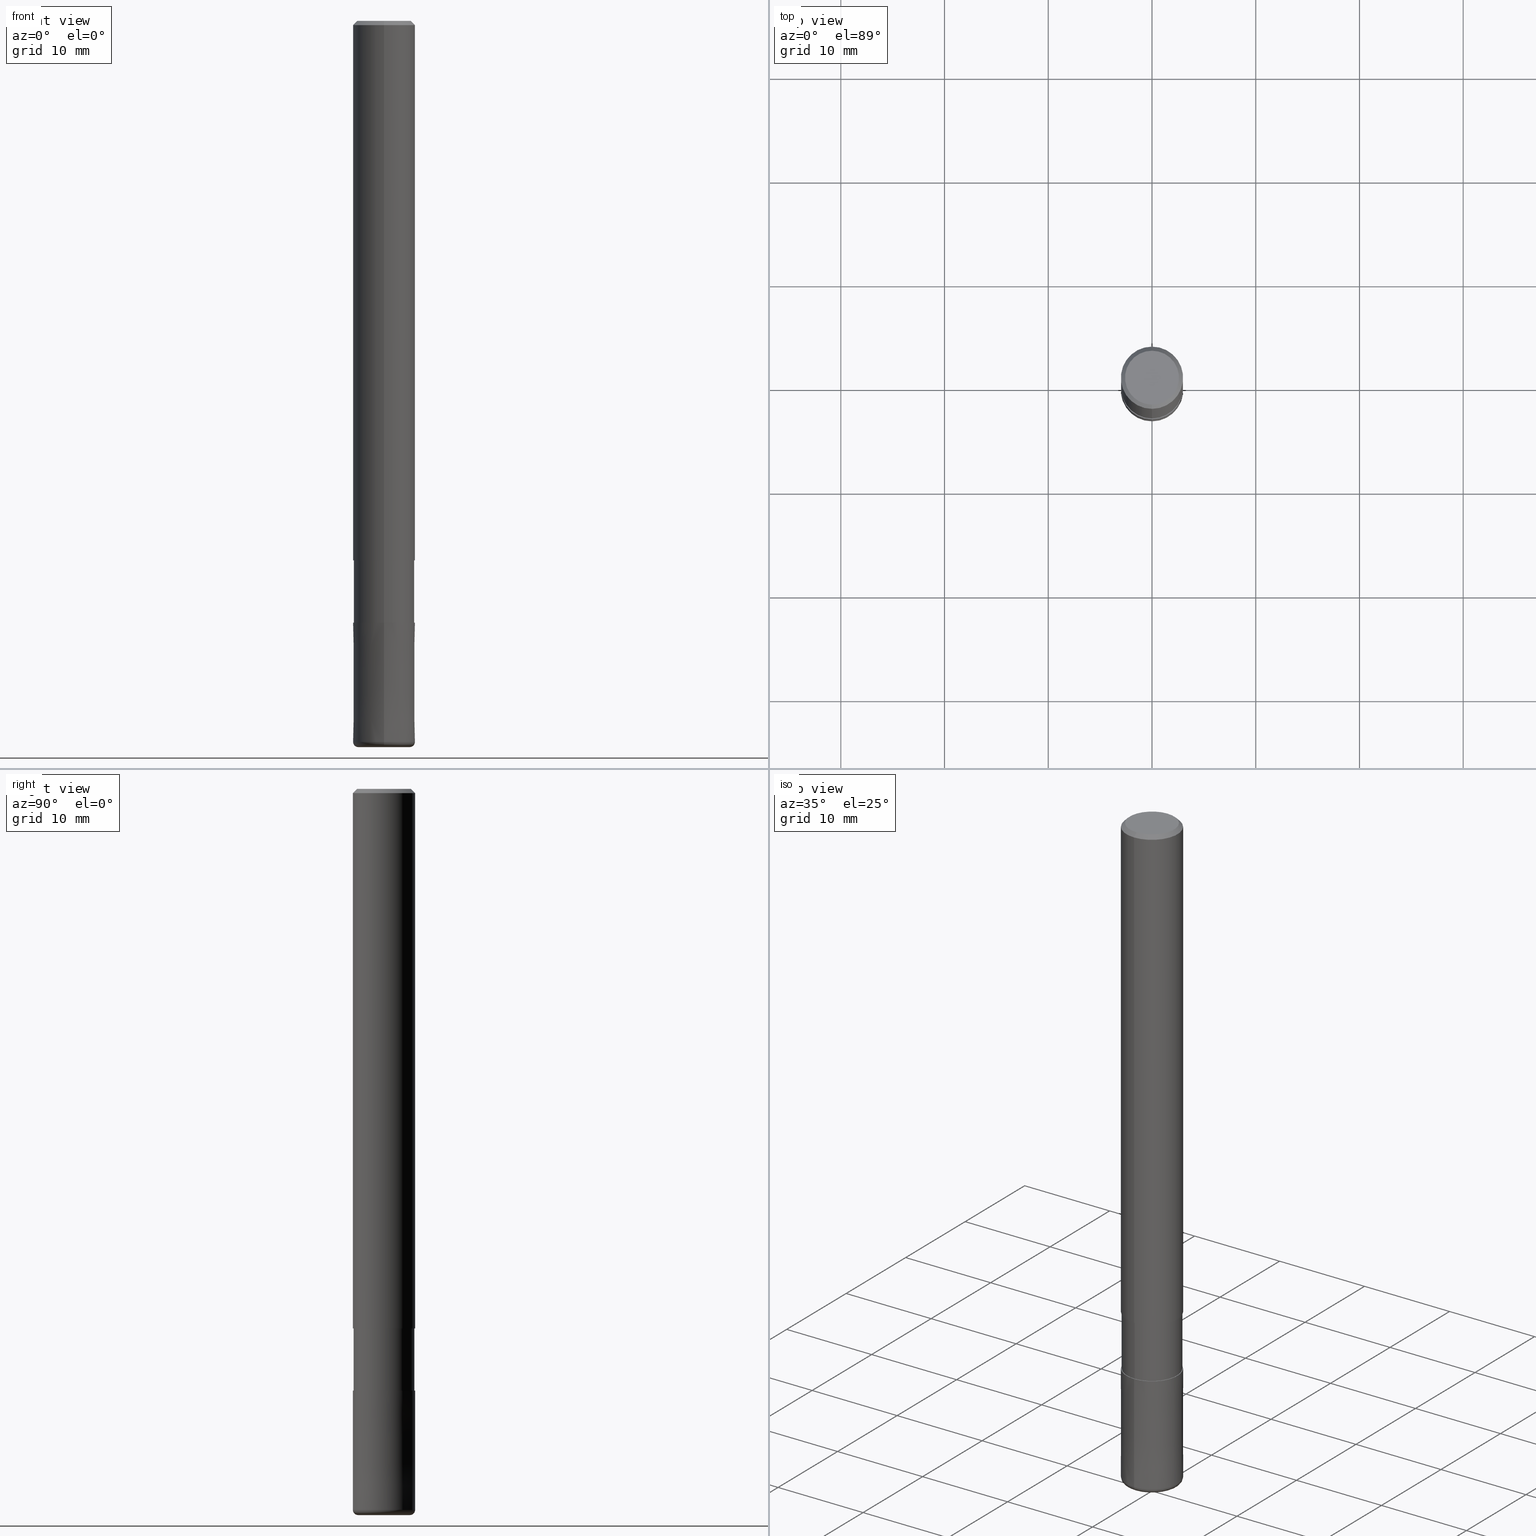
[diagram: canonical four-view strip — front | top / right | iso, engineering-drawing reading convention]
A machine part, canonical four-view strip (front | top / right | iso — engineering-drawing reading convention). The complete STEP part file that produces these views, byte-faithful:
ISO-10303-21;
HEADER;
FILE_DESCRIPTION(('no description'),'unknown implementation level');
FILE_NAME('CXLRS5060-05-18-Huellk.stp','  ',('CIMSOURCE GmbH'),('CADClick - KiM GmbH - www.kimweb.de'),'unknown preprocess','ACIS','unknown authorization');
FILE_SCHEMA(('automotive_design'));
ENDSEC;
DATA;
#1=MECHANICAL_DESIGN_GEOMETRIC_PRESENTATION_REPRESENTATION(' ',(#14,#15,#16,#17,#18,#19,#20,#21,#22,#23,#24,#25,#26,#27,#28,#29,#30,#31,#32,#33,#34,#35,#36,#37,#38,#39,#40,#41,#42,#43,#44,#45,#46,#47,#48,#49,#50,#51,#52,#53,#54,#55,#56,#57,#58,#59,#60,#61,#62,#63,#64,#65,#66,#67,#68,#69,#70,#71,#72,#73,#74,#75,#76,#77,#78,#79,#80,#81,#82,#83,#84,#85,#86,#87,#88,#89,#90,#91,#92,#93,#94,#95,#96,#97),#10);
#2=PRODUCT_DEFINITION_CONTEXT('',#98,'design');
#3=APPLICATION_PROTOCOL_DEFINITION('INTERNATIONAL STANDARD','automotive_design',1994,#98);
#4=PRODUCT_CATEGORY_RELATIONSHIP('NONE','NONE',#99,#100);
#5=SHAPE_DEFINITION_REPRESENTATION(#101,#102);
#6=PRODUCT_DEFINITION_CONTEXT('',#103,'design');
#7=APPLICATION_PROTOCOL_DEFINITION('INTERNATIONAL STANDARD','automotive_design',1994,#103);
#8=PRODUCT_CATEGORY_RELATIONSHIP('NONE','NONE',#104,#105);
#9=SHAPE_DEFINITION_REPRESENTATION(#106,#107);
#10= (GEOMETRIC_REPRESENTATION_CONTEXT(3)GLOBAL_UNCERTAINTY_ASSIGNED_CONTEXT((#110))GLOBAL_UNIT_ASSIGNED_CONTEXT((#112,#113,#114))REPRESENTATION_CONTEXT('NONE','WORKSPACE'));
#14=STYLED_ITEM('',(#116),#117);
#15=STYLED_ITEM('',(#118),#119);
#16=STYLED_ITEM('',(#120),#121);
#17=STYLED_ITEM('',(#122),#123);
#18=STYLED_ITEM('',(#124),#125);
#19=STYLED_ITEM('',(#126),#127);
#20=STYLED_ITEM('',(#128),#129);
#21=STYLED_ITEM('',(#130),#131);
#22=STYLED_ITEM('',(#132),#133);
#23=STYLED_ITEM('',(#134),#135);
#24=STYLED_ITEM('',(#136),#137);
#25=STYLED_ITEM('',(#138),#139);
#26=STYLED_ITEM('',(#140),#141);
#27=STYLED_ITEM('',(#142),#143);
#28=STYLED_ITEM('',(#144),#145);
#29=STYLED_ITEM('',(#146),#147);
#30=STYLED_ITEM('',(#148),#149);
#31=STYLED_ITEM('',(#150),#151);
#32=STYLED_ITEM('',(#152),#153);
#33=STYLED_ITEM('',(#154),#155);
#34=STYLED_ITEM('',(#156),#157);
#35=STYLED_ITEM('',(#158),#159);
#36=STYLED_ITEM('',(#160),#161);
#37=STYLED_ITEM('',(#162),#163);
#38=STYLED_ITEM('',(#164),#165);
#39=STYLED_ITEM('',(#166),#167);
#40=STYLED_ITEM('',(#168),#169);
#41=STYLED_ITEM('',(#170),#171);
#42=STYLED_ITEM('',(#172),#173);
#43=STYLED_ITEM('',(#174),#175);
#44=STYLED_ITEM('',(#176),#177);
#45=STYLED_ITEM('',(#178),#179);
#46=STYLED_ITEM('',(#180),#181);
#47=STYLED_ITEM('',(#182),#183);
#48=STYLED_ITEM('',(#184),#185);
#49=STYLED_ITEM('',(#186),#187);
#50=STYLED_ITEM('',(#188),#189);
#51=STYLED_ITEM('',(#190),#191);
#52=STYLED_ITEM('',(#192),#193);
#53=STYLED_ITEM('',(#194),#195);
#54=STYLED_ITEM('',(#196),#197);
#55=STYLED_ITEM('',(#198),#199);
#56=STYLED_ITEM('',(#200),#201);
#57=STYLED_ITEM('',(#202),#203);
#58=STYLED_ITEM('',(#204),#205);
#59=STYLED_ITEM('',(#206),#207);
#60=STYLED_ITEM('',(#208),#209);
#61=STYLED_ITEM('',(#210),#211);
#62=STYLED_ITEM('',(#212),#213);
#63=STYLED_ITEM('',(#214),#215);
#64=STYLED_ITEM('',(#216),#217);
#65=STYLED_ITEM('',(#218),#219);
#66=STYLED_ITEM('',(#220),#221);
#67=STYLED_ITEM('',(#222),#223);
#68=STYLED_ITEM('',(#224),#225);
#69=STYLED_ITEM('',(#226),#227);
#70=STYLED_ITEM('',(#228),#229);
#71=STYLED_ITEM('',(#230),#231);
#72=STYLED_ITEM('',(#232),#233);
#73=STYLED_ITEM('',(#234),#235);
#74=STYLED_ITEM('',(#236),#237);
#75=STYLED_ITEM('',(#238),#239);
#76=STYLED_ITEM('',(#240),#241);
#77=STYLED_ITEM('',(#242),#243);
#78=STYLED_ITEM('',(#244),#245);
#79=STYLED_ITEM('',(#246),#247);
#80=STYLED_ITEM('',(#248),#249);
#81=STYLED_ITEM('',(#250),#251);
#82=STYLED_ITEM('',(#252),#253);
#83=STYLED_ITEM('',(#254),#255);
#84=STYLED_ITEM('',(#256),#257);
#85=STYLED_ITEM('',(#258),#259);
#86=STYLED_ITEM('',(#260),#261);
#87=STYLED_ITEM('',(#262),#263);
#88=STYLED_ITEM('',(#264),#265);
#89=STYLED_ITEM('',(#266),#267);
#90=STYLED_ITEM('',(#268),#269);
#91=STYLED_ITEM('',(#270),#271);
#92=STYLED_ITEM('',(#272),#273);
#93=STYLED_ITEM('',(#274),#275);
#94=STYLED_ITEM('',(#276),#277);
#95=STYLED_ITEM('',(#278),#279);
#96=STYLED_ITEM('',(#280),#281);
#97=STYLED_ITEM('',(#282),#283);
#98=APPLICATION_CONTEXT(' ');
#99=PRODUCT_CATEGORY('part','NONE');
#100=PRODUCT_RELATED_PRODUCT_CATEGORY('detail',' ',(#284));
#101=PRODUCT_DEFINITION_SHAPE('NONE','NONE',#285);
#102=ADVANCED_BREP_SHAPE_REPRESENTATION('1',(#283,#286),#10);
#103=APPLICATION_CONTEXT(' ');
#104=PRODUCT_CATEGORY('part','NONE');
#105=PRODUCT_RELATED_PRODUCT_CATEGORY('detail',' ',(#287));
#106=PRODUCT_DEFINITION_SHAPE('NONE','NONE',#288);
#107=ADVANCED_BREP_SHAPE_REPRESENTATION('2',(#277,#289),#10);
#110=UNCERTAINTY_MEASURE_WITH_UNIT(LENGTH_MEASURE(1.0E-006),#112,'','');
#112= (CONVERSION_BASED_UNIT('MILLIMETRE',#292)LENGTH_UNIT()NAMED_UNIT(#295));
#113= (NAMED_UNIT(#297)PLANE_ANGLE_UNIT()SI_UNIT($,.RADIAN.));
#114= (NAMED_UNIT(#297)SOLID_ANGLE_UNIT()SI_UNIT($,.STERADIAN.));
#116=PRESENTATION_STYLE_ASSIGNMENT((#303));
#117=ADVANCED_FACE('',(#304,#305),#306,.T.);
#118=PRESENTATION_STYLE_ASSIGNMENT((#307));
#119=EDGE_CURVE('',#233,#143,#308,.T.);
#120=PRESENTATION_STYLE_ASSIGNMENT((#309));
#121=VERTEX_POINT('',#310);
#122=PRESENTATION_STYLE_ASSIGNMENT((#311));
#123=EDGE_CURVE('',#231,#143,#312,.T.);
#124=PRESENTATION_STYLE_ASSIGNMENT((#313));
#125=EDGE_CURVE('',#281,#207,#314,.T.);
#126=PRESENTATION_STYLE_ASSIGNMENT((#315));
#127=EDGE_CURVE('',#275,#185,#316,.T.);
#128=PRESENTATION_STYLE_ASSIGNMENT((#317));
#129=EDGE_CURVE('',#281,#155,#318,.T.);
#130=PRESENTATION_STYLE_ASSIGNMENT((#319));
#131=EDGE_CURVE('',#233,#191,#320,.T.);
#132=PRESENTATION_STYLE_ASSIGNMENT((#321));
#133=EDGE_CURVE('',#251,#227,#322,.T.);
#134=PRESENTATION_STYLE_ASSIGNMENT((#323));
#135=EDGE_CURVE('',#265,#149,#324,.T.);
#136=PRESENTATION_STYLE_ASSIGNMENT((#325));
#137=ADVANCED_FACE('',(#326,#327),#328,.T.);
#138=PRESENTATION_STYLE_ASSIGNMENT((#329));
#139=EDGE_CURVE('',#231,#191,#330,.T.);
#140=PRESENTATION_STYLE_ASSIGNMENT((#331));
#141=ADVANCED_FACE('',(#332),#333,.T.);
#142=PRESENTATION_STYLE_ASSIGNMENT((#334));
#143=VERTEX_POINT('',#335);
#144=PRESENTATION_STYLE_ASSIGNMENT((#336));
#145=EDGE_CURVE('',#143,#233,#337,.T.);
#146=PRESENTATION_STYLE_ASSIGNMENT((#338));
#147=ADVANCED_FACE('',(#339,#340),#341,.T.);
#148=PRESENTATION_STYLE_ASSIGNMENT((#342));
#149=VERTEX_POINT('',#343);
#150=PRESENTATION_STYLE_ASSIGNMENT((#344));
#151=EDGE_CURVE('',#251,#213,#345,.T.);
#152=PRESENTATION_STYLE_ASSIGNMENT((#346));
#153=VERTEX_POINT('',#347);
#154=PRESENTATION_STYLE_ASSIGNMENT((#348));
#155=VERTEX_POINT('',#349);
#156=PRESENTATION_STYLE_ASSIGNMENT((#350));
#157=EDGE_CURVE('',#227,#251,#351,.T.);
#158=PRESENTATION_STYLE_ASSIGNMENT((#352));
#159=ADVANCED_FACE('',(#353),#354,.T.);
#160=PRESENTATION_STYLE_ASSIGNMENT((#355));
#161=ADVANCED_FACE('',(#356),#357,.T.);
#162=PRESENTATION_STYLE_ASSIGNMENT((#358));
#163=ADVANCED_FACE('',(#359),#360,.T.);
#164=PRESENTATION_STYLE_ASSIGNMENT((#361));
#165=ADVANCED_FACE('',(#362),#363,.T.);
#166=PRESENTATION_STYLE_ASSIGNMENT((#364));
#167=EDGE_CURVE('',#281,#185,#365,.T.);
#168=PRESENTATION_STYLE_ASSIGNMENT((#366));
#169=EDGE_CURVE('',#207,#203,#367,.T.);
#170=PRESENTATION_STYLE_ASSIGNMENT((#368));
#171=EDGE_CURVE('',#153,#279,#369,.T.);
#172=PRESENTATION_STYLE_ASSIGNMENT((#370));
#173=EDGE_CURVE('',#191,#231,#371,.T.);
#174=PRESENTATION_STYLE_ASSIGNMENT((#372));
#175=VERTEX_POINT('',#373);
#176=PRESENTATION_STYLE_ASSIGNMENT((#374));
#177=ADVANCED_FACE('',(#375),#376,.T.);
#178=PRESENTATION_STYLE_ASSIGNMENT((#377));
#179=ADVANCED_FACE('',(#378,#379),#380,.T.);
#180=PRESENTATION_STYLE_ASSIGNMENT((#381));
#181=EDGE_CURVE('',#193,#237,#382,.T.);
#182=PRESENTATION_STYLE_ASSIGNMENT((#383));
#183=EDGE_CURVE('',#149,#153,#384,.T.);
#184=PRESENTATION_STYLE_ASSIGNMENT((#385));
#185=VERTEX_POINT('',#386);
#186=PRESENTATION_STYLE_ASSIGNMENT((#387));
#187=EDGE_CURVE('',#279,#265,#388,.T.);
#188=PRESENTATION_STYLE_ASSIGNMENT((#389));
#189=EDGE_CURVE('',#175,#267,#390,.T.);
#190=PRESENTATION_STYLE_ASSIGNMENT((#391));
#191=VERTEX_POINT('',#392);
#192=PRESENTATION_STYLE_ASSIGNMENT((#393));
#193=VERTEX_POINT('',#394);
#194=PRESENTATION_STYLE_ASSIGNMENT((#395));
#195=EDGE_CURVE('',#121,#227,#396,.T.);
#196=PRESENTATION_STYLE_ASSIGNMENT((#397));
#197=ADVANCED_FACE('',(#398),#399,.T.);
#198=PRESENTATION_STYLE_ASSIGNMENT((#400));
#199=EDGE_CURVE('',#221,#261,#401,.T.);
#200=PRESENTATION_STYLE_ASSIGNMENT((#402));
#201=EDGE_CURVE('',#267,#221,#403,.T.);
#202=PRESENTATION_STYLE_ASSIGNMENT((#404));
#203=VERTEX_POINT('',#405);
#204=PRESENTATION_STYLE_ASSIGNMENT((#406));
#205=EDGE_CURVE('',#121,#213,#407,.T.);
#206=PRESENTATION_STYLE_ASSIGNMENT((#408));
#207=VERTEX_POINT('',#409);
#208=PRESENTATION_STYLE_ASSIGNMENT((#410));
#209=EDGE_CURVE('',#275,#155,#411,.T.);
#210=PRESENTATION_STYLE_ASSIGNMENT((#412));
#211=EDGE_CURVE('',#175,#261,#413,.T.);
#212=PRESENTATION_STYLE_ASSIGNMENT((#414));
#213=VERTEX_POINT('',#415);
#214=PRESENTATION_STYLE_ASSIGNMENT((#416));
#215=ADVANCED_FACE('',(#417),#418,.T.);
#216=PRESENTATION_STYLE_ASSIGNMENT((#419));
#217=EDGE_CURVE('',#185,#281,#420,.T.);
#218=PRESENTATION_STYLE_ASSIGNMENT((#421));
#219=ADVANCED_FACE('',(#422),#423,.T.);
#220=PRESENTATION_STYLE_ASSIGNMENT((#424));
#221=VERTEX_POINT('',#425);
#222=PRESENTATION_STYLE_ASSIGNMENT((#426));
#223=EDGE_CURVE('',#193,#231,#427,.T.);
#224=PRESENTATION_STYLE_ASSIGNMENT((#428));
#225=EDGE_CURVE('',#237,#193,#429,.T.);
#226=PRESENTATION_STYLE_ASSIGNMENT((#430));
#227=VERTEX_POINT('',#431);
#228=PRESENTATION_STYLE_ASSIGNMENT((#432));
#229=ADVANCED_FACE('',(#433),#434,.T.);
#230=PRESENTATION_STYLE_ASSIGNMENT((#435));
#231=VERTEX_POINT('',#436);
#232=PRESENTATION_STYLE_ASSIGNMENT((#437));
#233=VERTEX_POINT('',#438);
#234=PRESENTATION_STYLE_ASSIGNMENT((#439));
#235=ADVANCED_FACE('',(#440),#441,.T.);
#236=PRESENTATION_STYLE_ASSIGNMENT((#442));
#237=VERTEX_POINT('',#443);
#238=PRESENTATION_STYLE_ASSIGNMENT((#444));
#239=ADVANCED_FACE('',(#445),#446,.F.);
#240=PRESENTATION_STYLE_ASSIGNMENT((#447));
#241=EDGE_CURVE('',#155,#275,#448,.T.);
#242=PRESENTATION_STYLE_ASSIGNMENT((#449));
#243=ADVANCED_FACE('',(#450),#451,.T.);
#244=PRESENTATION_STYLE_ASSIGNMENT((#452));
#245=EDGE_CURVE('',#261,#175,#453,.T.);
#246=PRESENTATION_STYLE_ASSIGNMENT((#454));
#247=EDGE_CURVE('',#203,#185,#455,.T.);
#248=PRESENTATION_STYLE_ASSIGNMENT((#456));
#249=EDGE_CURVE('',#213,#121,#457,.T.);
#250=PRESENTATION_STYLE_ASSIGNMENT((#458));
#251=VERTEX_POINT('',#459);
#252=PRESENTATION_STYLE_ASSIGNMENT((#460));
#253=EDGE_CURVE('',#221,#267,#461,.T.);
#254=PRESENTATION_STYLE_ASSIGNMENT((#462));
#255=EDGE_CURVE('',#191,#237,#463,.T.);
#256=PRESENTATION_STYLE_ASSIGNMENT((#464));
#257=ADVANCED_FACE('',(#465),#466,.T.);
#258=PRESENTATION_STYLE_ASSIGNMENT((#467));
#259=EDGE_CURVE('',#153,#149,#468,.T.);
#260=PRESENTATION_STYLE_ASSIGNMENT((#469));
#261=VERTEX_POINT('',#470);
#262=PRESENTATION_STYLE_ASSIGNMENT((#471));
#263=EDGE_CURVE('',#203,#207,#472,.T.);
#264=PRESENTATION_STYLE_ASSIGNMENT((#473));
#265=VERTEX_POINT('',#474);
#266=PRESENTATION_STYLE_ASSIGNMENT((#475));
#267=VERTEX_POINT('',#476);
#268=PRESENTATION_STYLE_ASSIGNMENT((#477));
#269=ADVANCED_FACE('',(#478),#479,.F.);
#270=PRESENTATION_STYLE_ASSIGNMENT((#480));
#271=EDGE_CURVE('',#265,#279,#481,.T.);
#272=PRESENTATION_STYLE_ASSIGNMENT((#482));
#273=ADVANCED_FACE('',(#483),#484,.T.);
#274=PRESENTATION_STYLE_ASSIGNMENT((#485));
#275=VERTEX_POINT('',#486);
#276=PRESENTATION_STYLE_ASSIGNMENT((#487));
#277=MANIFOLD_SOLID_BREP('2',#488);
#278=PRESENTATION_STYLE_ASSIGNMENT((#489));
#279=VERTEX_POINT('',#490);
#280=PRESENTATION_STYLE_ASSIGNMENT((#491));
#281=VERTEX_POINT('',#492);
#282=PRESENTATION_STYLE_ASSIGNMENT((#493));
#283=MANIFOLD_SOLID_BREP('1',#494);
#284=PRODUCT('1','1','PART-1-DESC',(#495));
#285=PRODUCT_DEFINITION('NONE','NONE',#496,#2);
#286=AXIS2_PLACEMENT_3D('',#497,#498,#499);
#287=PRODUCT('2','2','PART-2-DESC',(#500));
#288=PRODUCT_DEFINITION('NONE','NONE',#501,#6);
#289=AXIS2_PLACEMENT_3D('',#502,#503,#504);
#292=LENGTH_MEASURE_WITH_UNIT(LENGTH_MEASURE(1.0),#505);
#295=DIMENSIONAL_EXPONENTS(1.0,0.0,0.0,0.0,0.0,0.0,0.0);
#297=DIMENSIONAL_EXPONENTS(0.0,0.0,0.0,0.0,0.0,0.0,0.0);
#303=SURFACE_STYLE_USAGE(.BOTH.,#506);
#304=FACE_BOUND('',#507,.T.);
#305=FACE_OUTER_BOUND('',#508,.T.);
#306=PLANE('',#509);
#307=CURVE_STYLE('',#510,POSITIVE_LENGTH_MEASURE(1.0E-006),#511);
#308=CIRCLE('',#512,3.0);
#309=POINT_STYLE(' ',#513,POSITIVE_LENGTH_MEASURE(1.0E-006),#514);
#310=CARTESIAN_POINT('',(0.0,1.35,-58.0));
#311=CURVE_STYLE('',#515,POSITIVE_LENGTH_MEASURE(1.0E-006),#516);
#312=LINE('',#517,#518);
#313=CURVE_STYLE('',#519,POSITIVE_LENGTH_MEASURE(1.0E-006),#520);
#314=LINE('',#521,#522);
#315=CURVE_STYLE('',#523,POSITIVE_LENGTH_MEASURE(1.0E-006),#524);
#316=CIRCLE('',#525,0.499999999999995);
#317=CURVE_STYLE('',#526,POSITIVE_LENGTH_MEASURE(1.0E-006),#527);
#318=CIRCLE('',#528,0.499999999999995);
#319=CURVE_STYLE('',#529,POSITIVE_LENGTH_MEASURE(1.0E-006),#530);
#320=LINE('',#531,#532);
#321=CURVE_STYLE('',#533,POSITIVE_LENGTH_MEASURE(1.0E-006),#534);
#322=CIRCLE('',#535,1.35);
#323=CURVE_STYLE('',#536,POSITIVE_LENGTH_MEASURE(1.0E-006),#537);
#324=LINE('',#538,#539);
#325=SURFACE_STYLE_USAGE(.BOTH.,#540);
#326=FACE_OUTER_BOUND('',#541,.T.);
#327=FACE_BOUND('',#542,.T.);
#328=PLANE('',#543);
#329=CURVE_STYLE('',#544,POSITIVE_LENGTH_MEASURE(1.0E-006),#545);
#330=CIRCLE('',#546,3.0);
#331=SURFACE_STYLE_USAGE(.BOTH.,#547);
#332=FACE_OUTER_BOUND('',#548,.T.);
#333=PLANE('',#549);
#334=POINT_STYLE(' ',#550,POSITIVE_LENGTH_MEASURE(1.0E-006),#551);
#335=CARTESIAN_POINT('',(0.0,3.0,-52.0));
#336=CURVE_STYLE('',#552,POSITIVE_LENGTH_MEASURE(1.0E-006),#553);
#337=CIRCLE('',#554,3.0);
#338=SURFACE_STYLE_USAGE(.BOTH.,#555);
#339=FACE_BOUND('',#556,.T.);
#340=FACE_OUTER_BOUND('',#557,.T.);
#341=PLANE('',#558);
#342=POINT_STYLE(' ',#559,POSITIVE_LENGTH_MEASURE(1.0E-006),#560);
#343=CARTESIAN_POINT('',(0.0,1.35,-69.9));
#344=CURVE_STYLE('',#561,POSITIVE_LENGTH_MEASURE(1.0E-006),#562);
#345=LINE('',#563,#564);
#346=POINT_STYLE(' ',#565,POSITIVE_LENGTH_MEASURE(1.0E-006),#566);
#347=CARTESIAN_POINT('',(1.65321857766021E-016,-1.35,-69.9));
#348=POINT_STYLE(' ',#567,POSITIVE_LENGTH_MEASURE(1.0E-006),#568);
#349=CARTESIAN_POINT('',(3.06151588455594E-016,-2.5,-70.0));
#350=CURVE_STYLE('',#569,POSITIVE_LENGTH_MEASURE(1.0E-006),#570);
#351=CIRCLE('',#571,1.35);
#352=SURFACE_STYLE_USAGE(.BOTH.,#572);
#353=FACE_OUTER_BOUND('',#573,.T.);
#354=CYLINDRICAL_SURFACE('',#574,3.0);
#355=SURFACE_STYLE_USAGE(.BOTH.,#575);
#356=FACE_OUTER_BOUND('',#576,.T.);
#357=CONICAL_SURFACE('',#577,2.99995,8.69565217371222E-006);
#358=SURFACE_STYLE_USAGE(.BOTH.,#578);
#359=FACE_OUTER_BOUND('',#579,.T.);
#360=CYLINDRICAL_SURFACE('',#580,1.35);
#361=SURFACE_STYLE_USAGE(.BOTH.,#581);
#362=FACE_OUTER_BOUND('',#582,.T.);
#363=CONICAL_SURFACE('',#583,2.99995,8.69565217371222E-006);
#364=CURVE_STYLE('',#584,POSITIVE_LENGTH_MEASURE(1.0E-006),#585);
#365=CIRCLE('',#586,3.0);
#366=CURVE_STYLE('',#587,POSITIVE_LENGTH_MEASURE(1.0E-006),#588);
#367=CIRCLE('',#589,2.9999);
#368=CURVE_STYLE('',#590,POSITIVE_LENGTH_MEASURE(1.0E-006),#591);
#369=LINE('',#592,#593);
#370=CURVE_STYLE('',#594,POSITIVE_LENGTH_MEASURE(1.0E-006),#595);
#371=CIRCLE('',#596,3.0);
#372=POINT_STYLE(' ',#597,POSITIVE_LENGTH_MEASURE(1.0E-006),#598);
#373=CARTESIAN_POINT('',(3.58191235461276E-016,-2.92495,-58.0));
#374=SURFACE_STYLE_USAGE(.BOTH.,#599);
#375=FACE_OUTER_BOUND('',#600,.T.);
#376=CYLINDRICAL_SURFACE('',#601,2.92495);
#377=SURFACE_STYLE_USAGE(.BOTH.,#602);
#378=FACE_OUTER_BOUND('',#603,.T.);
#379=FACE_BOUND('',#604,.T.);
#380=PLANE('',#605);
#381=CURVE_STYLE('',#606,POSITIVE_LENGTH_MEASURE(1.0E-006),#607);
#382=CIRCLE('',#608,2.6);
#383=CURVE_STYLE('',#609,POSITIVE_LENGTH_MEASURE(1.0E-006),#610);
#384=CIRCLE('',#611,1.35);
#385=POINT_STYLE(' ',#612,POSITIVE_LENGTH_MEASURE(1.0E-006),#613);
#386=CARTESIAN_POINT('',(0.0,3.0,-69.5));
#387=CURVE_STYLE('',#614,POSITIVE_LENGTH_MEASURE(1.0E-006),#615);
#388=CIRCLE('',#616,1.35);
#389=CURVE_STYLE('',#617,POSITIVE_LENGTH_MEASURE(1.0E-006),#618);
#390=LINE('',#619,#620);
#391=POINT_STYLE(' ',#621,POSITIVE_LENGTH_MEASURE(1.0E-006),#622);
#392=CARTESIAN_POINT('',(3.67381906146713E-016,-3.0,-0.399999999999999));
#393=POINT_STYLE(' ',#623,POSITIVE_LENGTH_MEASURE(1.0E-006),#624);
#394=CARTESIAN_POINT('',(0.0,2.6,0.0));
#395=CURVE_STYLE('',#625,POSITIVE_LENGTH_MEASURE(1.0E-006),#626);
#396=LINE('',#627,#628);
#397=SURFACE_STYLE_USAGE(.BOTH.,#629);
#398=FACE_OUTER_BOUND('',#630,.T.);
#399=CONICAL_SURFACE('',#631,2.8,0.78539816339745);
#400=CURVE_STYLE('',#632,POSITIVE_LENGTH_MEASURE(1.0E-006),#633);
#401=LINE('',#634,#635);
#402=CURVE_STYLE('',#636,POSITIVE_LENGTH_MEASURE(1.0E-006),#637);
#403=CIRCLE('',#638,2.92495);
#404=POINT_STYLE(' ',#639,POSITIVE_LENGTH_MEASURE(1.0E-006),#640);
#405=CARTESIAN_POINT('',(0.0,2.9999,-58.0));
#406=CURVE_STYLE('',#641,POSITIVE_LENGTH_MEASURE(1.0E-006),#642);
#407=CIRCLE('',#643,1.35);
#408=POINT_STYLE(' ',#644,POSITIVE_LENGTH_MEASURE(1.0E-006),#645);
#409=CARTESIAN_POINT('',(3.67369660083175E-016,-2.9999,-58.0));
#410=CURVE_STYLE('',#646,POSITIVE_LENGTH_MEASURE(1.0E-006),#647);
#411=CIRCLE('',#648,2.5);
#412=CURVE_STYLE('',#649,POSITIVE_LENGTH_MEASURE(1.0E-006),#650);
#413=CIRCLE('',#651,2.92495);
#414=POINT_STYLE(' ',#652,POSITIVE_LENGTH_MEASURE(1.0E-006),#653);
#415=CARTESIAN_POINT('',(1.65321857766021E-016,-1.35,-58.0));
#416=SURFACE_STYLE_USAGE(.BOTH.,#654);
#417=FACE_OUTER_BOUND('',#655,.T.);
#418=CYLINDRICAL_SURFACE('',#656,2.92495);
#419=CURVE_STYLE('',#657,POSITIVE_LENGTH_MEASURE(1.0E-006),#658);
#420=CIRCLE('',#659,3.0);
#421=SURFACE_STYLE_USAGE(.BOTH.,#660);
#422=FACE_OUTER_BOUND('',#661,.T.);
#423=CYLINDRICAL_SURFACE('',#662,1.35);
#424=POINT_STYLE(' ',#663,POSITIVE_LENGTH_MEASURE(1.0E-006),#664);
#425=CARTESIAN_POINT('',(0.0,2.92495,-52.0));
#426=CURVE_STYLE('',#665,POSITIVE_LENGTH_MEASURE(1.0E-006),#666);
#427=LINE('',#667,#668);
#428=CURVE_STYLE('',#669,POSITIVE_LENGTH_MEASURE(1.0E-006),#670);
#429=CIRCLE('',#671,2.6);
#430=POINT_STYLE(' ',#672,POSITIVE_LENGTH_MEASURE(1.0E-006),#673);
#431=CARTESIAN_POINT('',(0.0,1.35,-70.0));
#432=SURFACE_STYLE_USAGE(.BOTH.,#674);
#433=FACE_OUTER_BOUND('',#675,.T.);
#434=PLANE('',#676);
#435=POINT_STYLE(' ',#677,POSITIVE_LENGTH_MEASURE(1.0E-006),#678);
#436=CARTESIAN_POINT('',(0.0,3.0,-0.399999999999999));
#437=POINT_STYLE(' ',#679,POSITIVE_LENGTH_MEASURE(1.0E-006),#680);
#438=CARTESIAN_POINT('',(3.67381906146713E-016,-3.0,-52.0));
#439=SURFACE_STYLE_USAGE(.BOTH.,#681);
#440=FACE_OUTER_BOUND('',#682,.T.);
#441=CYLINDRICAL_SURFACE('',#683,3.0);
#442=POINT_STYLE(' ',#684,POSITIVE_LENGTH_MEASURE(1.0E-006),#685);
#443=CARTESIAN_POINT('',(3.18397651993818E-016,-2.6,0.0));
#444=SURFACE_STYLE_USAGE(.BOTH.,#686);
#445=FACE_OUTER_BOUND('',#687,.T.);
#446=CYLINDRICAL_SURFACE('',#688,1.35);
#447=CURVE_STYLE('',#689,POSITIVE_LENGTH_MEASURE(1.0E-006),#690);
#448=CIRCLE('',#691,2.5);
#449=SURFACE_STYLE_USAGE(.BOTH.,#692);
#450=FACE_OUTER_BOUND('',#693,.T.);
#451=CONICAL_SURFACE('',#694,2.8,0.78539816339745);
#452=CURVE_STYLE('',#695,POSITIVE_LENGTH_MEASURE(1.0E-006),#696);
#453=CIRCLE('',#697,2.92495);
#454=CURVE_STYLE('',#698,POSITIVE_LENGTH_MEASURE(1.0E-006),#699);
#455=LINE('',#700,#701);
#456=CURVE_STYLE('',#702,POSITIVE_LENGTH_MEASURE(1.0E-006),#703);
#457=CIRCLE('',#704,1.35);
#458=POINT_STYLE(' ',#705,POSITIVE_LENGTH_MEASURE(1.0E-006),#706);
#459=CARTESIAN_POINT('',(1.65321857766021E-016,-1.35,-70.0));
#460=CURVE_STYLE('',#707,POSITIVE_LENGTH_MEASURE(1.0E-006),#708);
#461=CIRCLE('',#709,2.92495);
#462=CURVE_STYLE('',#710,POSITIVE_LENGTH_MEASURE(1.0E-006),#711);
#463=LINE('',#712,#713);
#464=SURFACE_STYLE_USAGE(.BOTH.,#714);
#465=FACE_OUTER_BOUND('',#715,.T.);
#466=TOROIDAL_SURFACE('',#716,2.5,0.499999999999995);
#467=CURVE_STYLE('',#717,POSITIVE_LENGTH_MEASURE(1.0E-006),#718);
#468=CIRCLE('',#719,1.35);
#469=POINT_STYLE(' ',#720,POSITIVE_LENGTH_MEASURE(1.0E-006),#721);
#470=CARTESIAN_POINT('',(0.0,2.92495,-58.0));
#471=CURVE_STYLE('',#722,POSITIVE_LENGTH_MEASURE(1.0E-006),#723);
#472=CIRCLE('',#724,2.9999);
#473=POINT_STYLE(' ',#725,POSITIVE_LENGTH_MEASURE(1.0E-006),#726);
#474=CARTESIAN_POINT('',(0.0,1.35,-58.0));
#475=POINT_STYLE(' ',#727,POSITIVE_LENGTH_MEASURE(1.0E-006),#728);
#476=CARTESIAN_POINT('',(3.58191235461276E-016,-2.92495,-52.0));
#477=SURFACE_STYLE_USAGE(.BOTH.,#729);
#478=FACE_OUTER_BOUND('',#730,.T.);
#479=CYLINDRICAL_SURFACE('',#731,1.35);
#480=CURVE_STYLE('',#732,POSITIVE_LENGTH_MEASURE(1.0E-006),#733);
#481=CIRCLE('',#734,1.35);
#482=SURFACE_STYLE_USAGE(.BOTH.,#735);
#483=FACE_OUTER_BOUND('',#736,.T.);
#484=TOROIDAL_SURFACE('',#737,2.5,0.499999999999995);
#485=POINT_STYLE(' ',#738,POSITIVE_LENGTH_MEASURE(1.0E-006),#739);
#486=CARTESIAN_POINT('',(0.0,2.5,-70.0));
#487=SURFACE_STYLE_USAGE(.BOTH.,#740);
#488=CLOSED_SHELL('',(#269,#257,#165,#137,#161,#273,#147,#239));
#489=POINT_STYLE(' ',#741,POSITIVE_LENGTH_MEASURE(1.0E-006),#742);
#490=CARTESIAN_POINT('',(1.65321857766021E-016,-1.35,-58.0));
#491=POINT_STYLE(' ',#743,POSITIVE_LENGTH_MEASURE(1.0E-006),#744);
#492=CARTESIAN_POINT('',(3.67381906146713E-016,-3.0,-69.5));
#493=SURFACE_STYLE_USAGE(.BOTH.,#745);
#494=CLOSED_SHELL('',(#163,#215,#235,#197,#179,#229,#243,#159,#177,#117,#219,#141));
#495=PRODUCT_CONTEXT('',#98,'mechanical');
#496=PRODUCT_DEFINITION_FORMATION_WITH_SPECIFIED_SOURCE(' ','NONE',#284,.NOT_KNOWN.);
#497=CARTESIAN_POINT('',(0.0,0.0,0.0));
#498=DIRECTION('',(0.0,0.0,1.0));
#499=DIRECTION('',(1.0,0.0,0.0));
#500=PRODUCT_CONTEXT('',#103,'mechanical');
#501=PRODUCT_DEFINITION_FORMATION_WITH_SPECIFIED_SOURCE(' ','NONE',#287,.NOT_KNOWN.);
#502=CARTESIAN_POINT('',(0.0,0.0,0.0));
#503=DIRECTION('',(0.0,0.0,1.0));
#504=DIRECTION('',(1.0,0.0,0.0));
#505= (NAMED_UNIT(#295)LENGTH_UNIT()SI_UNIT(.MILLI.,.METRE.));
#506=SURFACE_SIDE_STYLE('',(#747));
#507=EDGE_LOOP('',(#748,#749));
#508=EDGE_LOOP('',(#750,#751));
#509=AXIS2_PLACEMENT_3D('',#752,#753,#754);
#510=DRAUGHTING_PRE_DEFINED_CURVE_FONT('continuous');
#511=COLOUR_RGB('',0.498039215803146,0.498039215803146,0.498039215803146);
#512=AXIS2_PLACEMENT_3D('',#755,#756,#757);
#513=PRE_DEFINED_MARKER('');
#514=COLOUR_RGB('',0.800000011920929,0.800000011920929,0.800000011920929);
#515=DRAUGHTING_PRE_DEFINED_CURVE_FONT('continuous');
#516=COLOUR_RGB('',0.498039215803146,0.498039215803146,0.498039215803146);
#517=CARTESIAN_POINT('',(-3.67381906146713E-016,3.0,-26.2));
#518=VECTOR('',#758,1.0);
#519=DRAUGHTING_PRE_DEFINED_CURVE_FONT('continuous');
#520=COLOUR_RGB('',0.800000011920929,0.800000011920929,0.800000011920929);
#521=CARTESIAN_POINT('',(3.67375783114944E-016,-2.99995,-63.75));
#522=VECTOR('',#759,1.0);
#523=DRAUGHTING_PRE_DEFINED_CURVE_FONT('continuous');
#524=COLOUR_RGB('',0.800000011920929,0.800000011920929,0.800000011920929);
#525=AXIS2_PLACEMENT_3D('',#760,#761,#762);
#526=DRAUGHTING_PRE_DEFINED_CURVE_FONT('continuous');
#527=COLOUR_RGB('',0.800000011920929,0.800000011920929,0.800000011920929);
#528=AXIS2_PLACEMENT_3D('',#763,#764,#765);
#529=DRAUGHTING_PRE_DEFINED_CURVE_FONT('continuous');
#530=COLOUR_RGB('',0.498039215803146,0.498039215803146,0.498039215803146);
#531=CARTESIAN_POINT('',(3.67381906146713E-016,-3.0,-26.2));
#532=VECTOR('',#766,1.0);
#533=DRAUGHTING_PRE_DEFINED_CURVE_FONT('continuous');
#534=COLOUR_RGB('',0.800000011920929,0.800000011920929,0.800000011920929);
#535=AXIS2_PLACEMENT_3D('',#767,#768,#769);
#536=DRAUGHTING_PRE_DEFINED_CURVE_FONT('continuous');
#537=COLOUR_RGB('',0.498039215803146,0.498039215803146,0.498039215803146);
#538=CARTESIAN_POINT('',(-1.65321857766021E-016,1.35,-63.95));
#539=VECTOR('',#770,1.0);
#540=SURFACE_SIDE_STYLE('',(#771));
#541=EDGE_LOOP('',(#772,#773));
#542=EDGE_LOOP('',(#774,#775));
#543=AXIS2_PLACEMENT_3D('',#776,#777,#778);
#544=DRAUGHTING_PRE_DEFINED_CURVE_FONT('continuous');
#545=COLOUR_RGB('',0.498039215803146,0.498039215803146,0.498039215803146);
#546=AXIS2_PLACEMENT_3D('',#779,#780,#781);
#547=SURFACE_SIDE_STYLE('',(#782));
#548=EDGE_LOOP('',(#783,#784));
#549=AXIS2_PLACEMENT_3D('',#785,#786,#787);
#550=PRE_DEFINED_MARKER('');
#551=COLOUR_RGB('',0.498039215803146,0.498039215803146,0.498039215803146);
#552=DRAUGHTING_PRE_DEFINED_CURVE_FONT('continuous');
#553=COLOUR_RGB('',0.498039215803146,0.498039215803146,0.498039215803146);
#554=AXIS2_PLACEMENT_3D('',#788,#789,#790);
#555=SURFACE_SIDE_STYLE('',(#791));
#556=EDGE_LOOP('',(#792,#793));
#557=EDGE_LOOP('',(#794,#795));
#558=AXIS2_PLACEMENT_3D('',#796,#797,#798);
#559=PRE_DEFINED_MARKER('');
#560=COLOUR_RGB('',0.498039215803146,0.498039215803146,0.498039215803146);
#561=DRAUGHTING_PRE_DEFINED_CURVE_FONT('continuous');
#562=COLOUR_RGB('',0.800000011920929,0.800000011920929,0.800000011920929);
#563=CARTESIAN_POINT('',(1.65321857766021E-016,-1.35,-64.0));
#564=VECTOR('',#799,1.0);
#565=PRE_DEFINED_MARKER('');
#566=COLOUR_RGB('',0.498039215803146,0.498039215803146,0.498039215803146);
#567=PRE_DEFINED_MARKER('');
#568=COLOUR_RGB('',0.800000011920929,0.800000011920929,0.800000011920929);
#569=DRAUGHTING_PRE_DEFINED_CURVE_FONT('continuous');
#570=COLOUR_RGB('',0.800000011920929,0.800000011920929,0.800000011920929);
#571=AXIS2_PLACEMENT_3D('',#800,#801,#802);
#572=SURFACE_SIDE_STYLE('',(#803));
#573=EDGE_LOOP('',(#804,#805,#806,#807));
#574=AXIS2_PLACEMENT_3D('',#808,#809,#810);
#575=SURFACE_SIDE_STYLE('',(#811));
#576=EDGE_LOOP('',(#812,#813,#814,#815));
#577=AXIS2_PLACEMENT_3D('',#816,#817,#818);
#578=SURFACE_SIDE_STYLE('',(#819));
#579=EDGE_LOOP('',(#820,#821,#822,#823));
#580=AXIS2_PLACEMENT_3D('',#824,#825,#826);
#581=SURFACE_SIDE_STYLE('',(#827));
#582=EDGE_LOOP('',(#828,#829,#830,#831));
#583=AXIS2_PLACEMENT_3D('',#832,#833,#834);
#584=DRAUGHTING_PRE_DEFINED_CURVE_FONT('continuous');
#585=COLOUR_RGB('',0.800000011920929,0.800000011920929,0.800000011920929);
#586=AXIS2_PLACEMENT_3D('',#835,#836,#837);
#587=DRAUGHTING_PRE_DEFINED_CURVE_FONT('continuous');
#588=COLOUR_RGB('',0.800000011920929,0.800000011920929,0.800000011920929);
#589=AXIS2_PLACEMENT_3D('',#838,#839,#840);
#590=DRAUGHTING_PRE_DEFINED_CURVE_FONT('continuous');
#591=COLOUR_RGB('',0.498039215803146,0.498039215803146,0.498039215803146);
#592=CARTESIAN_POINT('',(1.65321857766021E-016,-1.35,-63.95));
#593=VECTOR('',#841,1.0);
#594=DRAUGHTING_PRE_DEFINED_CURVE_FONT('continuous');
#595=COLOUR_RGB('',0.498039215803146,0.498039215803146,0.498039215803146);
#596=AXIS2_PLACEMENT_3D('',#842,#843,#844);
#597=PRE_DEFINED_MARKER('');
#598=COLOUR_RGB('',0.498039215803146,0.498039215803146,0.498039215803146);
#599=SURFACE_SIDE_STYLE('',(#845));
#600=EDGE_LOOP('',(#846,#847,#848,#849));
#601=AXIS2_PLACEMENT_3D('',#850,#851,#852);
#602=SURFACE_SIDE_STYLE('',(#853));
#603=EDGE_LOOP('',(#854,#855));
#604=EDGE_LOOP('',(#856,#857));
#605=AXIS2_PLACEMENT_3D('',#858,#859,#860);
#606=DRAUGHTING_PRE_DEFINED_CURVE_FONT('continuous');
#607=COLOUR_RGB('',0.498039215803146,0.498039215803146,0.498039215803146);
#608=AXIS2_PLACEMENT_3D('',#861,#862,#863);
#609=DRAUGHTING_PRE_DEFINED_CURVE_FONT('continuous');
#610=COLOUR_RGB('',0.498039215803146,0.498039215803146,0.498039215803146);
#611=AXIS2_PLACEMENT_3D('',#864,#865,#866);
#612=PRE_DEFINED_MARKER('');
#613=COLOUR_RGB('',0.800000011920929,0.800000011920929,0.800000011920929);
#614=DRAUGHTING_PRE_DEFINED_CURVE_FONT('continuous');
#615=COLOUR_RGB('',0.498039215803146,0.498039215803146,0.498039215803146);
#616=AXIS2_PLACEMENT_3D('',#867,#868,#869);
#617=DRAUGHTING_PRE_DEFINED_CURVE_FONT('continuous');
#618=COLOUR_RGB('',0.498039215803146,0.498039215803146,0.498039215803146);
#619=CARTESIAN_POINT('',(3.58191235461276E-016,-2.92495,-55.0));
#620=VECTOR('',#870,1.0);
#621=PRE_DEFINED_MARKER('');
#622=COLOUR_RGB('',0.498039215803146,0.498039215803146,0.498039215803146);
#623=PRE_DEFINED_MARKER('');
#624=COLOUR_RGB('',0.498039215803146,0.498039215803146,0.498039215803146);
#625=DRAUGHTING_PRE_DEFINED_CURVE_FONT('continuous');
#626=COLOUR_RGB('',0.800000011920929,0.800000011920929,0.800000011920929);
#627=CARTESIAN_POINT('',(-1.65321857766021E-016,1.35,-64.0));
#628=VECTOR('',#871,1.0);
#629=SURFACE_SIDE_STYLE('',(#872));
#630=EDGE_LOOP('',(#873,#874,#875,#876));
#631=AXIS2_PLACEMENT_3D('',#877,#878,#879);
#632=DRAUGHTING_PRE_DEFINED_CURVE_FONT('continuous');
#633=COLOUR_RGB('',0.498039215803146,0.498039215803146,0.498039215803146);
#634=CARTESIAN_POINT('',(-3.58191235461276E-016,2.92495,-55.0));
#635=VECTOR('',#880,1.0);
#636=DRAUGHTING_PRE_DEFINED_CURVE_FONT('continuous');
#637=COLOUR_RGB('',0.498039215803146,0.498039215803146,0.498039215803146);
#638=AXIS2_PLACEMENT_3D('',#881,#882,#883);
#639=PRE_DEFINED_MARKER('');
#640=COLOUR_RGB('',0.800000011920929,0.800000011920929,0.800000011920929);
#641=DRAUGHTING_PRE_DEFINED_CURVE_FONT('continuous');
#642=COLOUR_RGB('',0.800000011920929,0.800000011920929,0.800000011920929);
#643=AXIS2_PLACEMENT_3D('',#884,#885,#886);
#644=PRE_DEFINED_MARKER('');
#645=COLOUR_RGB('',0.800000011920929,0.800000011920929,0.800000011920929);
#646=DRAUGHTING_PRE_DEFINED_CURVE_FONT('continuous');
#647=COLOUR_RGB('',0.800000011920929,0.800000011920929,0.800000011920929);
#648=AXIS2_PLACEMENT_3D('',#887,#888,#889);
#649=DRAUGHTING_PRE_DEFINED_CURVE_FONT('continuous');
#650=COLOUR_RGB('',0.498039215803146,0.498039215803146,0.498039215803146);
#651=AXIS2_PLACEMENT_3D('',#890,#891,#892);
#652=PRE_DEFINED_MARKER('');
#653=COLOUR_RGB('',0.800000011920929,0.800000011920929,0.800000011920929);
#654=SURFACE_SIDE_STYLE('',(#893));
#655=EDGE_LOOP('',(#894,#895,#896,#897));
#656=AXIS2_PLACEMENT_3D('',#898,#899,#900);
#657=DRAUGHTING_PRE_DEFINED_CURVE_FONT('continuous');
#658=COLOUR_RGB('',0.800000011920929,0.800000011920929,0.800000011920929);
#659=AXIS2_PLACEMENT_3D('',#901,#902,#903);
#660=SURFACE_SIDE_STYLE('',(#904));
#661=EDGE_LOOP('',(#905,#906,#907,#908));
#662=AXIS2_PLACEMENT_3D('',#909,#910,#911);
#663=PRE_DEFINED_MARKER('');
#664=COLOUR_RGB('',0.498039215803146,0.498039215803146,0.498039215803146);
#665=DRAUGHTING_PRE_DEFINED_CURVE_FONT('continuous');
#666=COLOUR_RGB('',0.498039215803146,0.498039215803146,0.498039215803146);
#667=CARTESIAN_POINT('',(-3.42889779070266E-016,2.8,-0.200000000000003));
#668=VECTOR('',#912,1.0);
#669=DRAUGHTING_PRE_DEFINED_CURVE_FONT('continuous');
#670=COLOUR_RGB('',0.498039215803146,0.498039215803146,0.498039215803146);
#671=AXIS2_PLACEMENT_3D('',#913,#914,#915);
#672=PRE_DEFINED_MARKER('');
#673=COLOUR_RGB('',0.800000011920929,0.800000011920929,0.800000011920929);
#674=SURFACE_SIDE_STYLE('',(#916));
#675=EDGE_LOOP('',(#917,#918));
#676=AXIS2_PLACEMENT_3D('',#919,#920,#921);
#677=PRE_DEFINED_MARKER('');
#678=COLOUR_RGB('',0.498039215803146,0.498039215803146,0.498039215803146);
#679=PRE_DEFINED_MARKER('');
#680=COLOUR_RGB('',0.498039215803146,0.498039215803146,0.498039215803146);
#681=SURFACE_SIDE_STYLE('',(#922));
#682=EDGE_LOOP('',(#923,#924,#925,#926));
#683=AXIS2_PLACEMENT_3D('',#927,#928,#929);
#684=PRE_DEFINED_MARKER('');
#685=COLOUR_RGB('',0.498039215803146,0.498039215803146,0.498039215803146);
#686=SURFACE_SIDE_STYLE('',(#930));
#687=EDGE_LOOP('',(#931,#932,#933,#934));
#688=AXIS2_PLACEMENT_3D('',#935,#936,#937);
#689=DRAUGHTING_PRE_DEFINED_CURVE_FONT('continuous');
#690=COLOUR_RGB('',0.800000011920929,0.800000011920929,0.800000011920929);
#691=AXIS2_PLACEMENT_3D('',#938,#939,#940);
#692=SURFACE_SIDE_STYLE('',(#941));
#693=EDGE_LOOP('',(#942,#943,#944,#945));
#694=AXIS2_PLACEMENT_3D('',#946,#947,#948);
#695=DRAUGHTING_PRE_DEFINED_CURVE_FONT('continuous');
#696=COLOUR_RGB('',0.498039215803146,0.498039215803146,0.498039215803146);
#697=AXIS2_PLACEMENT_3D('',#949,#950,#951);
#698=DRAUGHTING_PRE_DEFINED_CURVE_FONT('continuous');
#699=COLOUR_RGB('',0.800000011920929,0.800000011920929,0.800000011920929);
#700=CARTESIAN_POINT('',(-3.67375783114944E-016,2.99995,-63.75));
#701=VECTOR('',#952,1.0);
#702=DRAUGHTING_PRE_DEFINED_CURVE_FONT('continuous');
#703=COLOUR_RGB('',0.800000011920929,0.800000011920929,0.800000011920929);
#704=AXIS2_PLACEMENT_3D('',#953,#954,#955);
#705=PRE_DEFINED_MARKER('');
#706=COLOUR_RGB('',0.800000011920929,0.800000011920929,0.800000011920929);
#707=DRAUGHTING_PRE_DEFINED_CURVE_FONT('continuous');
#708=COLOUR_RGB('',0.498039215803146,0.498039215803146,0.498039215803146);
#709=AXIS2_PLACEMENT_3D('',#956,#957,#958);
#710=DRAUGHTING_PRE_DEFINED_CURVE_FONT('continuous');
#711=COLOUR_RGB('',0.498039215803146,0.498039215803146,0.498039215803146);
#712=CARTESIAN_POINT('',(3.42889779070266E-016,-2.8,-0.200000000000003));
#713=VECTOR('',#959,1.0);
#714=SURFACE_SIDE_STYLE('',(#960));
#715=EDGE_LOOP('',(#961,#962,#963,#964));
#716=AXIS2_PLACEMENT_3D('',#965,#966,#967);
#717=DRAUGHTING_PRE_DEFINED_CURVE_FONT('continuous');
#718=COLOUR_RGB('',0.498039215803146,0.498039215803146,0.498039215803146);
#719=AXIS2_PLACEMENT_3D('',#968,#969,#970);
#720=PRE_DEFINED_MARKER('');
#721=COLOUR_RGB('',0.498039215803146,0.498039215803146,0.498039215803146);
#722=DRAUGHTING_PRE_DEFINED_CURVE_FONT('continuous');
#723=COLOUR_RGB('',0.800000011920929,0.800000011920929,0.800000011920929);
#724=AXIS2_PLACEMENT_3D('',#971,#972,#973);
#725=PRE_DEFINED_MARKER('');
#726=COLOUR_RGB('',0.498039215803146,0.498039215803146,0.498039215803146);
#727=PRE_DEFINED_MARKER('');
#728=COLOUR_RGB('',0.498039215803146,0.498039215803146,0.498039215803146);
#729=SURFACE_SIDE_STYLE('',(#974));
#730=EDGE_LOOP('',(#975,#976,#977,#978));
#731=AXIS2_PLACEMENT_3D('',#979,#980,#981);
#732=DRAUGHTING_PRE_DEFINED_CURVE_FONT('continuous');
#733=COLOUR_RGB('',0.498039215803146,0.498039215803146,0.498039215803146);
#734=AXIS2_PLACEMENT_3D('',#982,#983,#984);
#735=SURFACE_SIDE_STYLE('',(#985));
#736=EDGE_LOOP('',(#986,#987,#988,#989));
#737=AXIS2_PLACEMENT_3D('',#990,#991,#992);
#738=PRE_DEFINED_MARKER('');
#739=COLOUR_RGB('',0.800000011920929,0.800000011920929,0.800000011920929);
#740=SURFACE_SIDE_STYLE('',(#993));
#741=PRE_DEFINED_MARKER('');
#742=COLOUR_RGB('',0.498039215803146,0.498039215803146,0.498039215803146);
#743=PRE_DEFINED_MARKER('');
#744=COLOUR_RGB('',0.800000011920929,0.800000011920929,0.800000011920929);
#745=SURFACE_SIDE_STYLE('',(#994));
#747=SURFACE_STYLE_FILL_AREA(#995);
#748=ORIENTED_EDGE('',*,*,#271,.F.);
#749=ORIENTED_EDGE('',*,*,#187,.F.);
#750=ORIENTED_EDGE('',*,*,#245,.T.);
#751=ORIENTED_EDGE('',*,*,#211,.T.);
#752=CARTESIAN_POINT('',(0.0,2.137475,-58.0));
#753=DIRECTION('',(0.0,0.0,-1.0));
#754=DIRECTION('',(0.0,1.0,0.0));
#755=CARTESIAN_POINT('',(0.0,0.0,-52.0));
#756=DIRECTION('',(0.0,0.0,-1.0));
#757=DIRECTION('',(0.0,1.0,0.0));
#758=DIRECTION('',(0.0,0.0,-1.0));
#759=DIRECTION('',(-1.06487509024232E-021,8.69565217360264E-006,0.999999999962193));
#760=CARTESIAN_POINT('',(-3.06151588455595E-016,2.5,-69.5));
#761=DIRECTION('',(1.0,1.22460635382238E-016,0.0));
#762=DIRECTION('',(-1.22460635382238E-016,1.0,0.0));
#763=CARTESIAN_POINT('',(3.06151588455595E-016,-2.5,-69.5));
#764=DIRECTION('',(1.0,1.22460635382238E-016,0.0));
#765=DIRECTION('',(1.22460635382238E-016,-1.0,-0.0));
#766=DIRECTION('',(-0.0,-0.0,1.0));
#767=CARTESIAN_POINT('',(0.0,0.0,-70.0));
#768=DIRECTION('',(0.0,0.0,-1.0));
#769=DIRECTION('',(0.0,1.0,0.0));
#770=DIRECTION('',(0.0,0.0,-1.0));
#771=SURFACE_STYLE_FILL_AREA(#996);
#772=ORIENTED_EDGE('',*,*,#263,.F.);
#773=ORIENTED_EDGE('',*,*,#169,.F.);
#774=ORIENTED_EDGE('',*,*,#205,.T.);
#775=ORIENTED_EDGE('',*,*,#249,.T.);
#776=CARTESIAN_POINT('',(0.0,2.17495,-58.0));
#777=DIRECTION('',(-0.0,0.0,1.0));
#778=DIRECTION('',(0.0,-1.0,0.0));
#779=CARTESIAN_POINT('',(0.0,0.0,-0.399999999999999));
#780=DIRECTION('',(0.0,0.0,-1.0));
#781=DIRECTION('',(0.0,1.0,0.0));
#782=SURFACE_STYLE_FILL_AREA(#997);
#783=ORIENTED_EDGE('',*,*,#183,.T.);
#784=ORIENTED_EDGE('',*,*,#259,.T.);
#785=CARTESIAN_POINT('',(0.0,0.675,-69.9));
#786=DIRECTION('',(0.0,0.0,-1.0));
#787=DIRECTION('',(0.0,1.0,0.0));
#788=CARTESIAN_POINT('',(0.0,0.0,-52.0));
#789=DIRECTION('',(0.0,0.0,-1.0));
#790=DIRECTION('',(0.0,1.0,0.0));
#791=SURFACE_STYLE_FILL_AREA(#998);
#792=ORIENTED_EDGE('',*,*,#157,.F.);
#793=ORIENTED_EDGE('',*,*,#133,.F.);
#794=ORIENTED_EDGE('',*,*,#209,.T.);
#795=ORIENTED_EDGE('',*,*,#241,.T.);
#796=CARTESIAN_POINT('',(0.0,1.925,-70.0));
#797=DIRECTION('',(0.0,0.0,-1.0));
#798=DIRECTION('',(0.0,1.0,0.0));
#799=DIRECTION('',(0.0,-0.0,1.0));
#800=CARTESIAN_POINT('',(0.0,0.0,-70.0));
#801=DIRECTION('',(0.0,0.0,-1.0));
#802=DIRECTION('',(0.0,1.0,0.0));
#803=SURFACE_STYLE_FILL_AREA(#999);
#804=ORIENTED_EDGE('',*,*,#123,.T.);
#805=ORIENTED_EDGE('',*,*,#119,.F.);
#806=ORIENTED_EDGE('',*,*,#131,.T.);
#807=ORIENTED_EDGE('',*,*,#173,.T.);
#808=CARTESIAN_POINT('',(0.0,0.0,-26.2));
#809=DIRECTION('',(-0.0,-0.0,1.0));
#810=DIRECTION('',(0.0,1.0,0.0));
#811=SURFACE_STYLE_FILL_AREA(#1000);
#812=ORIENTED_EDGE('',*,*,#247,.T.);
#813=ORIENTED_EDGE('',*,*,#167,.F.);
#814=ORIENTED_EDGE('',*,*,#125,.T.);
#815=ORIENTED_EDGE('',*,*,#169,.T.);
#816=CARTESIAN_POINT('',(0.0,0.0,-63.75));
#817=DIRECTION('',(0.0,-0.0,-1.0));
#818=DIRECTION('',(0.0,1.0,0.0));
#819=SURFACE_STYLE_FILL_AREA(#1001);
#820=ORIENTED_EDGE('',*,*,#135,.F.);
#821=ORIENTED_EDGE('',*,*,#271,.T.);
#822=ORIENTED_EDGE('',*,*,#171,.F.);
#823=ORIENTED_EDGE('',*,*,#183,.F.);
#824=CARTESIAN_POINT('',(0.0,0.0,-63.95));
#825=DIRECTION('',(-0.0,-0.0,1.0));
#826=DIRECTION('',(0.0,1.0,0.0));
#827=SURFACE_STYLE_FILL_AREA(#1002);
#828=ORIENTED_EDGE('',*,*,#247,.F.);
#829=ORIENTED_EDGE('',*,*,#263,.T.);
#830=ORIENTED_EDGE('',*,*,#125,.F.);
#831=ORIENTED_EDGE('',*,*,#217,.F.);
#832=CARTESIAN_POINT('',(0.0,0.0,-63.75));
#833=DIRECTION('',(0.0,-0.0,-1.0));
#834=DIRECTION('',(0.0,1.0,0.0));
#835=CARTESIAN_POINT('',(0.0,0.0,-69.5));
#836=DIRECTION('',(0.0,0.0,-1.0));
#837=DIRECTION('',(0.0,1.0,0.0));
#838=CARTESIAN_POINT('',(0.0,0.0,-58.0));
#839=DIRECTION('',(0.0,0.0,-1.0));
#840=DIRECTION('',(0.0,1.0,0.0));
#841=DIRECTION('',(-0.0,-0.0,1.0));
#842=CARTESIAN_POINT('',(0.0,0.0,-0.399999999999999));
#843=DIRECTION('',(0.0,0.0,-1.0));
#844=DIRECTION('',(0.0,1.0,0.0));
#845=SURFACE_STYLE_FILL_AREA(#1003);
#846=ORIENTED_EDGE('',*,*,#199,.T.);
#847=ORIENTED_EDGE('',*,*,#211,.F.);
#848=ORIENTED_EDGE('',*,*,#189,.T.);
#849=ORIENTED_EDGE('',*,*,#201,.T.);
#850=CARTESIAN_POINT('',(0.0,0.0,-55.0));
#851=DIRECTION('',(-0.0,-0.0,1.0));
#852=DIRECTION('',(0.0,1.0,0.0));
#853=SURFACE_STYLE_FILL_AREA(#1004);
#854=ORIENTED_EDGE('',*,*,#145,.T.);
#855=ORIENTED_EDGE('',*,*,#119,.T.);
#856=ORIENTED_EDGE('',*,*,#253,.F.);
#857=ORIENTED_EDGE('',*,*,#201,.F.);
#858=CARTESIAN_POINT('',(0.0,1.5,-52.0));
#859=DIRECTION('',(0.0,0.0,-1.0));
#860=DIRECTION('',(0.0,1.0,0.0));
#861=CARTESIAN_POINT('',(0.0,0.0,0.0));
#862=DIRECTION('',(0.0,0.0,-1.0));
#863=DIRECTION('',(0.0,1.0,0.0));
#864=CARTESIAN_POINT('',(0.0,0.0,-69.9));
#865=DIRECTION('',(0.0,0.0,-1.0));
#866=DIRECTION('',(0.0,1.0,0.0));
#867=CARTESIAN_POINT('',(0.0,0.0,-58.0));
#868=DIRECTION('',(0.0,0.0,-1.0));
#869=DIRECTION('',(0.0,1.0,0.0));
#870=DIRECTION('',(-0.0,-0.0,1.0));
#871=DIRECTION('',(0.0,-0.0,-1.0));
#872=SURFACE_STYLE_FILL_AREA(#1005);
#873=ORIENTED_EDGE('',*,*,#223,.F.);
#874=ORIENTED_EDGE('',*,*,#181,.T.);
#875=ORIENTED_EDGE('',*,*,#255,.F.);
#876=ORIENTED_EDGE('',*,*,#139,.F.);
#877=CARTESIAN_POINT('',(0.0,0.0,-0.200000000000003));
#878=DIRECTION('',(0.0,-0.0,-1.0));
#879=DIRECTION('',(0.0,1.0,0.0));
#880=DIRECTION('',(0.0,0.0,-1.0));
#881=CARTESIAN_POINT('',(0.0,0.0,-52.0));
#882=DIRECTION('',(0.0,0.0,-1.0));
#883=DIRECTION('',(0.0,1.0,0.0));
#884=CARTESIAN_POINT('',(0.0,0.0,-58.0));
#885=DIRECTION('',(0.0,0.0,-1.0));
#886=DIRECTION('',(0.0,1.0,0.0));
#887=CARTESIAN_POINT('',(0.0,0.0,-70.0));
#888=DIRECTION('',(0.0,0.0,-1.0));
#889=DIRECTION('',(0.0,1.0,0.0));
#890=CARTESIAN_POINT('',(0.0,0.0,-58.0));
#891=DIRECTION('',(0.0,0.0,-1.0));
#892=DIRECTION('',(0.0,1.0,0.0));
#893=SURFACE_STYLE_FILL_AREA(#1006);
#894=ORIENTED_EDGE('',*,*,#199,.F.);
#895=ORIENTED_EDGE('',*,*,#253,.T.);
#896=ORIENTED_EDGE('',*,*,#189,.F.);
#897=ORIENTED_EDGE('',*,*,#245,.F.);
#898=CARTESIAN_POINT('',(0.0,0.0,-55.0));
#899=DIRECTION('',(-0.0,-0.0,1.0));
#900=DIRECTION('',(0.0,1.0,0.0));
#901=CARTESIAN_POINT('',(0.0,0.0,-69.5));
#902=DIRECTION('',(0.0,0.0,-1.0));
#903=DIRECTION('',(0.0,1.0,0.0));
#904=SURFACE_STYLE_FILL_AREA(#1007);
#905=ORIENTED_EDGE('',*,*,#135,.T.);
#906=ORIENTED_EDGE('',*,*,#259,.F.);
#907=ORIENTED_EDGE('',*,*,#171,.T.);
#908=ORIENTED_EDGE('',*,*,#187,.T.);
#909=CARTESIAN_POINT('',(0.0,0.0,-63.95));
#910=DIRECTION('',(-0.0,-0.0,1.0));
#911=DIRECTION('',(0.0,1.0,0.0));
#912=DIRECTION('',(-8.65927457071937E-017,0.707106781186549,-0.707106781186546));
#913=CARTESIAN_POINT('',(0.0,0.0,0.0));
#914=DIRECTION('',(0.0,0.0,-1.0));
#915=DIRECTION('',(0.0,1.0,0.0));
#916=SURFACE_STYLE_FILL_AREA(#1008);
#917=ORIENTED_EDGE('',*,*,#181,.F.);
#918=ORIENTED_EDGE('',*,*,#225,.F.);
#919=CARTESIAN_POINT('',(0.0,1.3,0.0));
#920=DIRECTION('',(-0.0,0.0,1.0));
#921=DIRECTION('',(0.0,-1.0,0.0));
#922=SURFACE_STYLE_FILL_AREA(#1009);
#923=ORIENTED_EDGE('',*,*,#123,.F.);
#924=ORIENTED_EDGE('',*,*,#139,.T.);
#925=ORIENTED_EDGE('',*,*,#131,.F.);
#926=ORIENTED_EDGE('',*,*,#145,.F.);
#927=CARTESIAN_POINT('',(0.0,0.0,-26.2));
#928=DIRECTION('',(-0.0,-0.0,1.0));
#929=DIRECTION('',(0.0,1.0,0.0));
#930=SURFACE_STYLE_FILL_AREA(#1010);
#931=ORIENTED_EDGE('',*,*,#195,.T.);
#932=ORIENTED_EDGE('',*,*,#157,.T.);
#933=ORIENTED_EDGE('',*,*,#151,.T.);
#934=ORIENTED_EDGE('',*,*,#205,.F.);
#935=CARTESIAN_POINT('',(0.0,0.0,-64.0));
#936=DIRECTION('',(-0.0,-0.0,1.0));
#937=DIRECTION('',(0.0,1.0,0.0));
#938=CARTESIAN_POINT('',(0.0,0.0,-70.0));
#939=DIRECTION('',(0.0,0.0,-1.0));
#940=DIRECTION('',(0.0,1.0,0.0));
#941=SURFACE_STYLE_FILL_AREA(#1011);
#942=ORIENTED_EDGE('',*,*,#223,.T.);
#943=ORIENTED_EDGE('',*,*,#173,.F.);
#944=ORIENTED_EDGE('',*,*,#255,.T.);
#945=ORIENTED_EDGE('',*,*,#225,.T.);
#946=CARTESIAN_POINT('',(0.0,0.0,-0.200000000000003));
#947=DIRECTION('',(0.0,-0.0,-1.0));
#948=DIRECTION('',(0.0,1.0,0.0));
#949=CARTESIAN_POINT('',(0.0,0.0,-58.0));
#950=DIRECTION('',(0.0,0.0,-1.0));
#951=DIRECTION('',(0.0,1.0,0.0));
#952=DIRECTION('',(-1.06487509024232E-021,8.69565217360264E-006,-0.999999999962193));
#953=CARTESIAN_POINT('',(0.0,0.0,-58.0));
#954=DIRECTION('',(0.0,0.0,-1.0));
#955=DIRECTION('',(0.0,1.0,0.0));
#956=CARTESIAN_POINT('',(0.0,0.0,-52.0));
#957=DIRECTION('',(0.0,0.0,-1.0));
#958=DIRECTION('',(0.0,1.0,0.0));
#959=DIRECTION('',(-8.65927457071937E-017,0.707106781186549,0.707106781186546));
#960=SURFACE_STYLE_FILL_AREA(#1012);
#961=ORIENTED_EDGE('',*,*,#129,.F.);
#962=ORIENTED_EDGE('',*,*,#167,.T.);
#963=ORIENTED_EDGE('',*,*,#127,.F.);
#964=ORIENTED_EDGE('',*,*,#241,.F.);
#965=CARTESIAN_POINT('',(0.0,0.0,-69.5));
#966=DIRECTION('',(0.0,0.0,-1.0));
#967=DIRECTION('',(0.0,-1.0,0.0));
#968=CARTESIAN_POINT('',(0.0,0.0,-69.9));
#969=DIRECTION('',(0.0,0.0,-1.0));
#970=DIRECTION('',(0.0,1.0,0.0));
#971=CARTESIAN_POINT('',(0.0,0.0,-58.0));
#972=DIRECTION('',(0.0,0.0,-1.0));
#973=DIRECTION('',(0.0,1.0,0.0));
#974=SURFACE_STYLE_FILL_AREA(#1013);
#975=ORIENTED_EDGE('',*,*,#195,.F.);
#976=ORIENTED_EDGE('',*,*,#249,.F.);
#977=ORIENTED_EDGE('',*,*,#151,.F.);
#978=ORIENTED_EDGE('',*,*,#133,.T.);
#979=CARTESIAN_POINT('',(0.0,0.0,-64.0));
#980=DIRECTION('',(-0.0,-0.0,1.0));
#981=DIRECTION('',(0.0,1.0,0.0));
#982=CARTESIAN_POINT('',(0.0,0.0,-58.0));
#983=DIRECTION('',(0.0,0.0,-1.0));
#984=DIRECTION('',(0.0,1.0,0.0));
#985=SURFACE_STYLE_FILL_AREA(#1014);
#986=ORIENTED_EDGE('',*,*,#129,.T.);
#987=ORIENTED_EDGE('',*,*,#209,.F.);
#988=ORIENTED_EDGE('',*,*,#127,.T.);
#989=ORIENTED_EDGE('',*,*,#217,.T.);
#990=CARTESIAN_POINT('',(0.0,0.0,-69.5));
#991=DIRECTION('',(0.0,0.0,-1.0));
#992=DIRECTION('',(0.0,-1.0,0.0));
#993=SURFACE_STYLE_FILL_AREA(#1015);
#994=SURFACE_STYLE_FILL_AREA(#1016);
#995=FILL_AREA_STYLE('',(#1017));
#996=FILL_AREA_STYLE('',(#1018));
#997=FILL_AREA_STYLE('',(#1019));
#998=FILL_AREA_STYLE('',(#1020));
#999=FILL_AREA_STYLE('',(#1021));
#1000=FILL_AREA_STYLE('',(#1022));
#1001=FILL_AREA_STYLE('',(#1023));
#1002=FILL_AREA_STYLE('',(#1024));
#1003=FILL_AREA_STYLE('',(#1025));
#1004=FILL_AREA_STYLE('',(#1026));
#1005=FILL_AREA_STYLE('',(#1027));
#1006=FILL_AREA_STYLE('',(#1028));
#1007=FILL_AREA_STYLE('',(#1029));
#1008=FILL_AREA_STYLE('',(#1030));
#1009=FILL_AREA_STYLE('',(#1031));
#1010=FILL_AREA_STYLE('',(#1032));
#1011=FILL_AREA_STYLE('',(#1033));
#1012=FILL_AREA_STYLE('',(#1034));
#1013=FILL_AREA_STYLE('',(#1035));
#1014=FILL_AREA_STYLE('',(#1036));
#1015=FILL_AREA_STYLE('',(#1037));
#1016=FILL_AREA_STYLE('',(#1038));
#1017=FILL_AREA_STYLE_COLOUR('',#1039);
#1018=FILL_AREA_STYLE_COLOUR('',#1040);
#1019=FILL_AREA_STYLE_COLOUR('',#1041);
#1020=FILL_AREA_STYLE_COLOUR('',#1042);
#1021=FILL_AREA_STYLE_COLOUR('',#1043);
#1022=FILL_AREA_STYLE_COLOUR('',#1044);
#1023=FILL_AREA_STYLE_COLOUR('',#1045);
#1024=FILL_AREA_STYLE_COLOUR('',#1046);
#1025=FILL_AREA_STYLE_COLOUR('',#1047);
#1026=FILL_AREA_STYLE_COLOUR('',#1048);
#1027=FILL_AREA_STYLE_COLOUR('',#1049);
#1028=FILL_AREA_STYLE_COLOUR('',#1050);
#1029=FILL_AREA_STYLE_COLOUR('',#1051);
#1030=FILL_AREA_STYLE_COLOUR('',#1052);
#1031=FILL_AREA_STYLE_COLOUR('',#1053);
#1032=FILL_AREA_STYLE_COLOUR('',#1054);
#1033=FILL_AREA_STYLE_COLOUR('',#1055);
#1034=FILL_AREA_STYLE_COLOUR('',#1056);
#1035=FILL_AREA_STYLE_COLOUR('',#1057);
#1036=FILL_AREA_STYLE_COLOUR('',#1058);
#1037=FILL_AREA_STYLE_COLOUR('',#1059);
#1038=FILL_AREA_STYLE_COLOUR('',#1060);
#1039=COLOUR_RGB('',0.498039215803146,0.498039215803146,0.498039215803146);
#1040=COLOUR_RGB('',0.800000011920929,0.800000011920929,0.800000011920929);
#1041=COLOUR_RGB('',0.498039215803146,0.498039215803146,0.498039215803146);
#1042=COLOUR_RGB('',0.800000011920929,0.800000011920929,0.800000011920929);
#1043=COLOUR_RGB('',0.498039215803146,0.498039215803146,0.498039215803146);
#1044=COLOUR_RGB('',0.800000011920929,0.800000011920929,0.800000011920929);
#1045=COLOUR_RGB('',0.498039215803146,0.498039215803146,0.498039215803146);
#1046=COLOUR_RGB('',0.800000011920929,0.800000011920929,0.800000011920929);
#1047=COLOUR_RGB('',0.498039215803146,0.498039215803146,0.498039215803146);
#1048=COLOUR_RGB('',0.498039215803146,0.498039215803146,0.498039215803146);
#1049=COLOUR_RGB('',0.498039215803146,0.498039215803146,0.498039215803146);
#1050=COLOUR_RGB('',0.498039215803146,0.498039215803146,0.498039215803146);
#1051=COLOUR_RGB('',0.498039215803146,0.498039215803146,0.498039215803146);
#1052=COLOUR_RGB('',0.498039215803146,0.498039215803146,0.498039215803146);
#1053=COLOUR_RGB('',0.498039215803146,0.498039215803146,0.498039215803146);
#1054=COLOUR_RGB('',0.800000011920929,0.800000011920929,0.800000011920929);
#1055=COLOUR_RGB('',0.498039215803146,0.498039215803146,0.498039215803146);
#1056=COLOUR_RGB('',0.800000011920929,0.800000011920929,0.800000011920929);
#1057=COLOUR_RGB('',0.800000011920929,0.800000011920929,0.800000011920929);
#1058=COLOUR_RGB('',0.800000011920929,0.800000011920929,0.800000011920929);
#1059=COLOUR_RGB('',0.800000011920929,0.800000011920929,0.800000011920929);
#1060=COLOUR_RGB('',0.498039215803146,0.498039215803146,0.498039215803146);
#1061=AXIS2_PLACEMENT_3D('PCS',#1062,#1063,#1064);
#1062=CARTESIAN_POINT('',(0.0,0.0,0.0));
#1063=DIRECTION('',(0.0,0.0,1.0));
#1064=DIRECTION('',(1.0,0.0,0.0));
#1065=AXIS2_PLACEMENT_3D('CIP',#1066,#1067,#1068);
#1066=CARTESIAN_POINT('',(0.0,0.0,-70.0));
#1067=DIRECTION('',(0.0,0.0,1.0));
#1068=DIRECTION('',(1.0,0.0,0.0));
#1069=AXIS2_PLACEMENT_3D('CRP',#1070,#1071,#1072);
#1070=CARTESIAN_POINT('',(-3.0,0.0,-70.0));
#1071=DIRECTION('',(0.0,0.0,1.0));
#1072=DIRECTION('',(1.0,0.0,0.0));
#1073=AXIS2_PLACEMENT_3D('MCS',#1074,#1075,#1076);
#1074=CARTESIAN_POINT('',(0.0,0.0,-52.0));
#1075=DIRECTION('',(0.0,0.0,1.0));
#1076=DIRECTION('',(1.0,0.0,0.0));
#1077=CONSTRUCTIVE_GEOMETRY_REPRESENTATION_RELATIONSHIP('coordinate systems',$,#102,#1078);
#1078=CONSTRUCTIVE_GEOMETRY_REPRESENTATION('coordinate systems',(#1061,#1065,#1069,#1073),#10);
ENDSEC;
END-ISO-10303-21;
